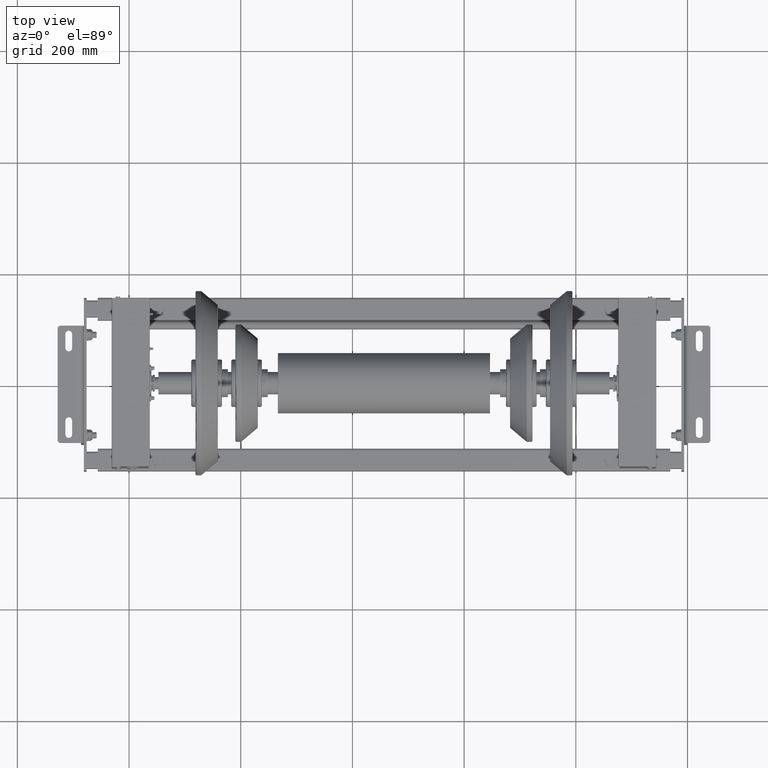
[diagram: clean part render]
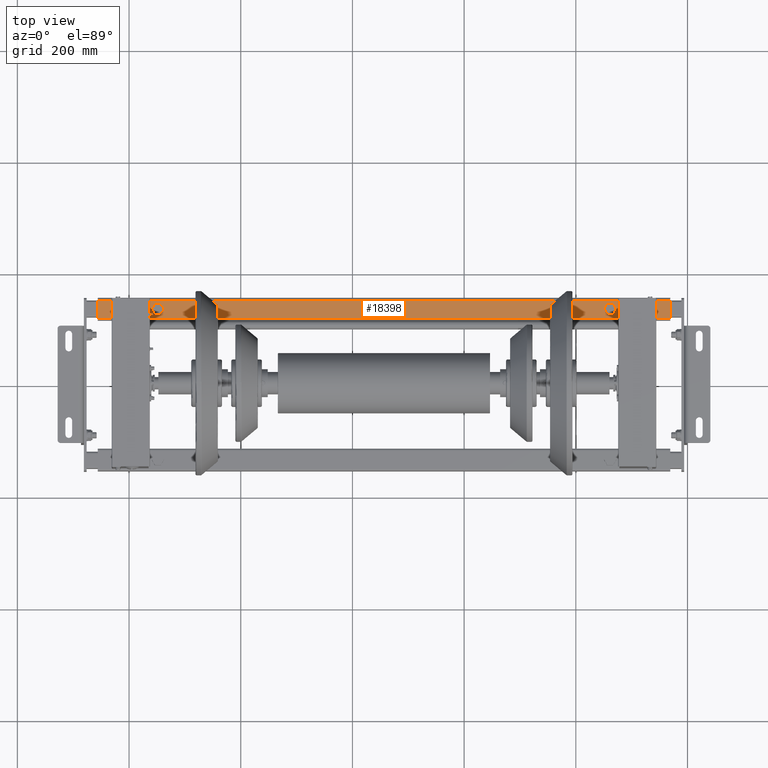
[diagram: same view with one face highlighted and labeled with its STEP entity id]
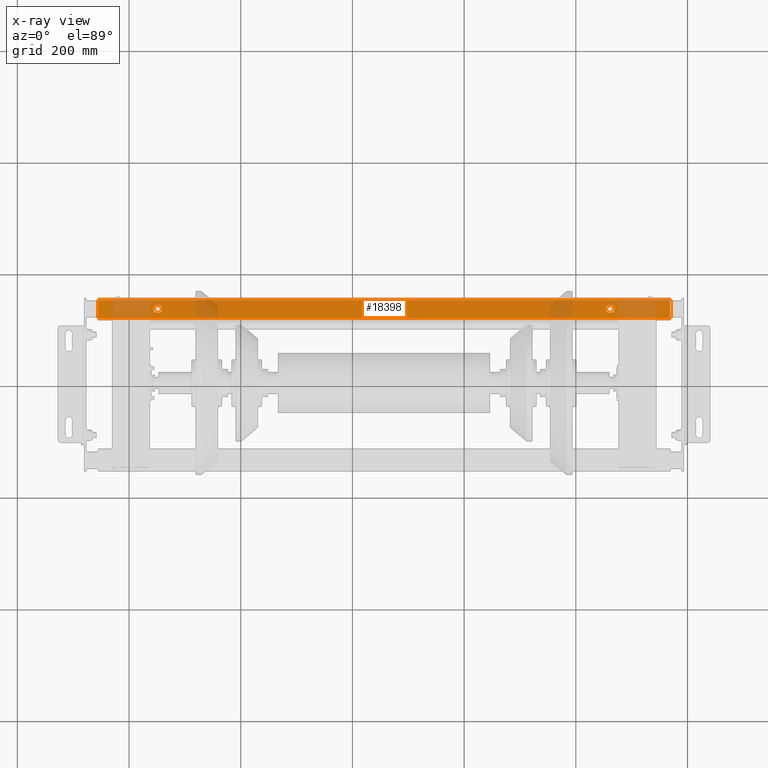
[diagram: x-ray of the same camera — body ghosted, the highlighted face saturated]
A machine part, top view. The second image highlights one B-rep face of the part: STEP entity #18398.
The next image is the same camera in x-ray: the body ghosted, the highlighted face saturated — about 21% of this face is hidden behind the body in this view.
In plain terms, the highlighted planar face has unit normal (0, 0, 1).
Its self-contained STEP definition (entity closure, byte-faithful):
#18191=CARTESIAN_POINT('',(-1.776357E-015,30.0,-290.100000000000020));
#18192=VERTEX_POINT('',#18191);
#18201=CARTESIAN_POINT('',(-8.701182E-016,30.0,-304.899999999999980));
#18202=VERTEX_POINT('',#18201);
#18203=CARTESIAN_POINT('',(-1.776357E-015,30.0,-297.500000000000000));
#18204=DIRECTION('',(0.0,-1.0,0.0));
#18205=DIRECTION('',(0.0,0.0,1.0));
#18206=AXIS2_PLACEMENT_3D('',#18203,#18204,#18205);
#18207=CIRCLE('',#18206,7.400000000000000);
#18208=EDGE_CURVE('',#18202,#18192,#18207,.T.);
#18233=CARTESIAN_POINT('',(0.0,30.0,519.899999999999980));
#18234=VERTEX_POINT('',#18233);
#18243=CARTESIAN_POINT('',(9.062386E-016,30.0,505.100000000000020));
#18244=VERTEX_POINT('',#18243);
#18245=CARTESIAN_POINT('',(0.0,30.0,512.500000000000000));
#18246=DIRECTION('',(0.0,-1.0,0.0));
#18247=DIRECTION('',(0.0,0.0,1.0));
#18248=AXIS2_PLACEMENT_3D('',#18245,#18246,#18247);
#18249=CIRCLE('',#18248,7.400000000000000);
#18250=EDGE_CURVE('',#18244,#18234,#18249,.T.);
#18284=CARTESIAN_POINT('',(0.0,30.0,512.500000000000000));
#18285=DIRECTION('',(0.0,-1.0,0.0));
#18286=DIRECTION('',(0.0,0.0,1.0));
#18287=AXIS2_PLACEMENT_3D('',#18284,#18285,#18286);
#18288=CIRCLE('',#18287,7.400000000000000);
#18289=EDGE_CURVE('',#18234,#18244,#18288,.T.);
#18308=CARTESIAN_POINT('',(-1.776357E-015,30.0,-297.500000000000000));
#18309=DIRECTION('',(0.0,-1.0,0.0));
#18310=DIRECTION('',(0.0,0.0,1.0));
#18311=AXIS2_PLACEMENT_3D('',#18308,#18309,#18310);
#18312=CIRCLE('',#18311,7.400000000000000);
#18313=EDGE_CURVE('',#18192,#18202,#18312,.T.);
#18325=CARTESIAN_POINT('',(-16.0,30.0,620.0));
#18326=VERTEX_POINT('',#18325);
#18334=CARTESIAN_POINT('',(-16.0,30.0,-405.0));
#18335=VERTEX_POINT('',#18334);
#18336=CARTESIAN_POINT('',(-16.0,30.0,-405.0));
#18337=DIRECTION('',(0.0,0.0,1.0));
#18338=VECTOR('',#18337,1025.0);
#18339=LINE('',#18336,#18338);
#18340=EDGE_CURVE('',#18335,#18326,#18339,.T.);
#18360=CARTESIAN_POINT('',(-16.0,30.0,-405.0));
#18361=DIRECTION('',(0.0,1.0,0.0));
#18362=DIRECTION('',(0.0,0.0,1.0));
#18363=AXIS2_PLACEMENT_3D('',#18360,#18361,#18362);
#18364=PLANE('',#18363);
#18365=CARTESIAN_POINT('',(16.0,30.0,620.0));
#18366=VERTEX_POINT('',#18365);
#18367=CARTESIAN_POINT('',(-16.0,30.0,620.0));
#18368=DIRECTION('',(1.0,0.0,0.0));
#18369=VECTOR('',#18368,32.0);
#18370=LINE('',#18367,#18369);
#18371=EDGE_CURVE('',#18326,#18366,#18370,.T.);
#18372=ORIENTED_EDGE('',*,*,#18371,.T.);
#18373=CARTESIAN_POINT('',(16.0,30.0,-405.0));
#18374=VERTEX_POINT('',#18373);
#18375=CARTESIAN_POINT('',(16.0,30.0,-405.0));
#18376=DIRECTION('',(0.0,0.0,1.0));
#18377=VECTOR('',#18376,1025.0);
#18378=LINE('',#18375,#18377);
#18379=EDGE_CURVE('',#18374,#18366,#18378,.T.);
#18380=ORIENTED_EDGE('',*,*,#18379,.F.);
#18381=CARTESIAN_POINT('',(-16.0,30.0,-405.0));
#18382=DIRECTION('',(1.0,0.0,0.0));
#18383=VECTOR('',#18382,32.0);
#18384=LINE('',#18381,#18383);
#18385=EDGE_CURVE('',#18335,#18374,#18384,.T.);
#18386=ORIENTED_EDGE('',*,*,#18385,.F.);
#18387=ORIENTED_EDGE('',*,*,#18340,.T.);
#18388=EDGE_LOOP('',(#18372,#18380,#18386,#18387));
#18389=FACE_OUTER_BOUND('',#18388,.T.);
#18390=ORIENTED_EDGE('',*,*,#18289,.T.);
#18391=ORIENTED_EDGE('',*,*,#18250,.T.);
#18392=EDGE_LOOP('',(#18390,#18391));
#18393=FACE_BOUND('',#18392,.T.);
#18394=ORIENTED_EDGE('',*,*,#18313,.T.);
#18395=ORIENTED_EDGE('',*,*,#18208,.T.);
#18396=EDGE_LOOP('',(#18394,#18395));
#18397=FACE_BOUND('',#18396,.T.);
#18398=ADVANCED_FACE('',(#18389,#18393,#18397),#18364,.T.);